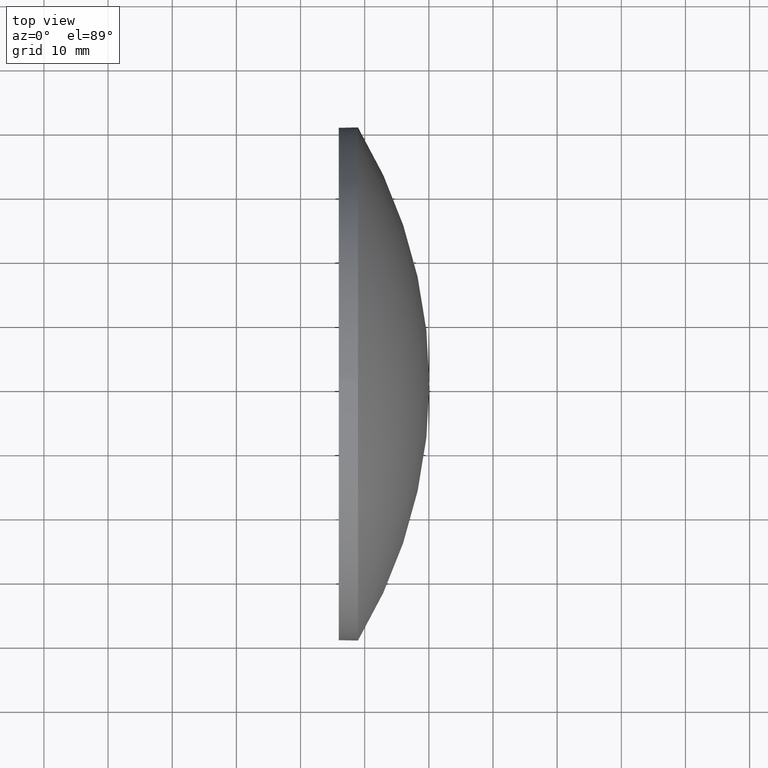
[diagram: clean part render]
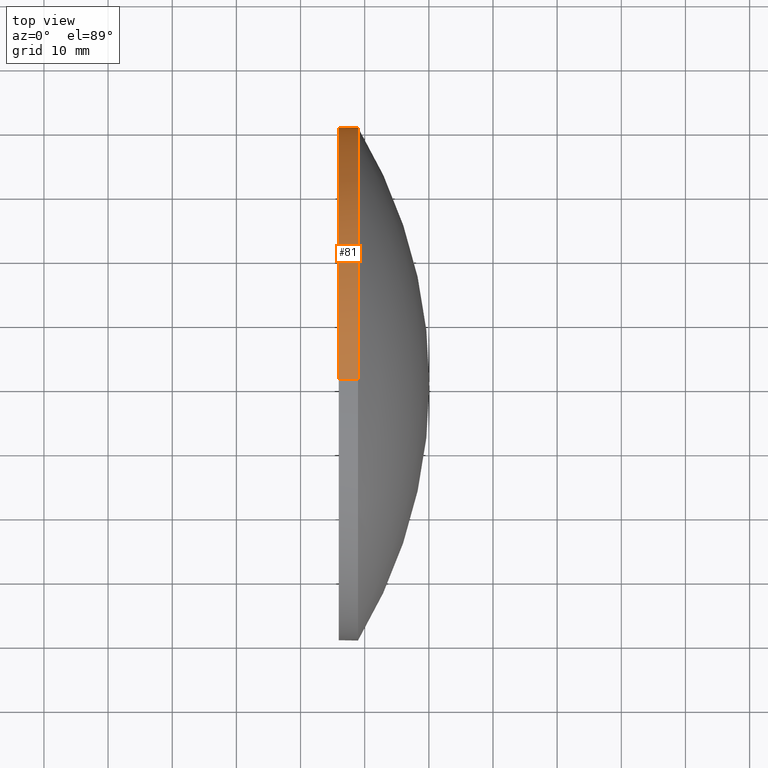
[diagram: same view with one face highlighted and labeled with its STEP entity id]
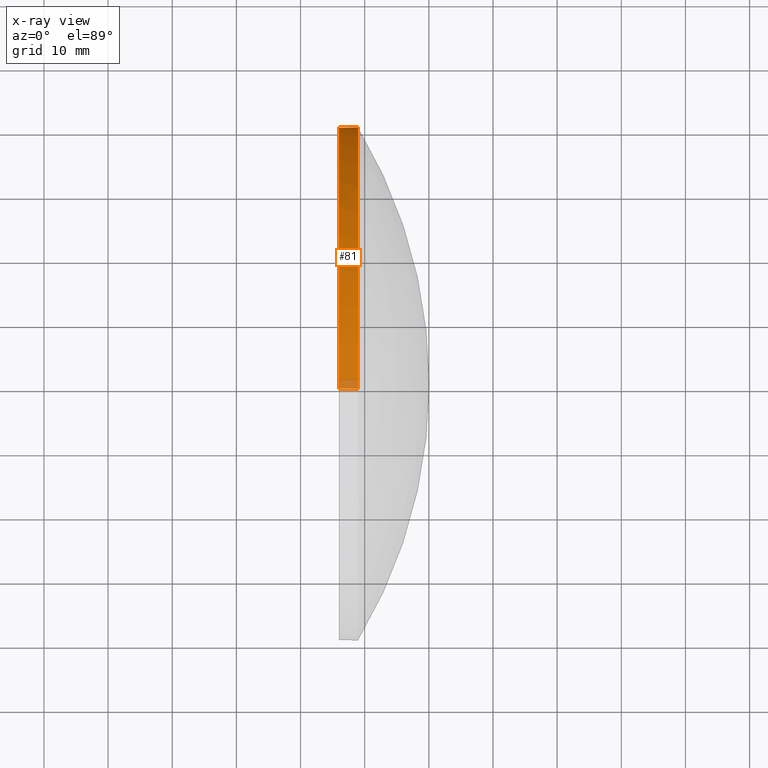
[diagram: x-ray of the same camera — body ghosted, the highlighted face saturated]
A machine part, top view. The second image highlights one B-rep face of the part: STEP entity #81.
The next image is the same camera in x-ray: the body ghosted, the highlighted face saturated — about 3% of this face is hidden behind the body in this view.
In plain terms, the highlighted cylindrical surface (partial cylindrical patch) has radius 40 mm, axis along (-1, -0, -0).
Its self-contained STEP definition (entity closure, byte-faithful):
#1 = ORIENTED_EDGE ( 'NONE', *, *, #128, .F. ) ;
#4 = ORIENTED_EDGE ( 'NONE', *, *, #186, .T. ) ;
#11 = CARTESIAN_POINT ( 'NONE',  ( 217.9945825323866300, 130.4671098528244200, 0.0000000000000000000 ) ) ;
#19 = LINE ( 'NONE', #180, #172 ) ;
#20 = ORIENTED_EDGE ( 'NONE', *, *, #35, .T. ) ;
#24 = DIRECTION ( 'NONE',  ( 0.0000000000000000000, 0.0000000000000000000, 1.000000000000000000 ) ) ;
#25 = CARTESIAN_POINT ( 'NONE',  ( 228.9490942240209100, 130.4671098528244200, -40.00000000000000700 ) ) ;
#29 = CYLINDRICAL_SURFACE ( 'NONE', #68, 40.00000000000000700 ) ;
#31 = CARTESIAN_POINT ( 'NONE',  ( 225.9490942240209100, 130.4671098528244200, 0.0000000000000000000 ) ) ;
#35 = EDGE_CURVE ( 'NONE', #125, #157, #36, .T. ) ;
#36 = CIRCLE ( 'NONE', #148, 40.00000000000000700 ) ;
#40 = CARTESIAN_POINT ( 'NONE',  ( 228.9490942240209100, 130.4671098528244200, 0.0000000000000000000 ) ) ;
#44 = DIRECTION ( 'NONE',  ( 0.0000000000000000000, 0.0000000000000000000, 1.000000000000000000 ) ) ;
#46 = FACE_OUTER_BOUND ( 'NONE', #101, .T. ) ;
#52 = CARTESIAN_POINT ( 'NONE',  ( 225.9490942240209100, 130.4671098528244200, -40.00000000000000700 ) ) ;
#55 = DIRECTION ( 'NONE',  ( -1.000000000000000000, -0.0000000000000000000, -0.0000000000000000000 ) ) ;
#63 = DIRECTION ( 'NONE',  ( -1.000000000000000000, -0.0000000000000000000, -0.0000000000000000000 ) ) ;
#64 = DIRECTION ( 'NONE',  ( -1.000000000000000000, -0.0000000000000000000, -0.0000000000000000000 ) ) ;
#68 = AXIS2_PLACEMENT_3D ( 'NONE', #11, #55, #178 ) ;
#79 = AXIS2_PLACEMENT_3D ( 'NONE', #31, #181, #110 ) ;
#81 = ADVANCED_FACE ( 'NONE', ( #46 ), #29, .T. ) ;
#84 = VERTEX_POINT ( 'NONE', #52 ) ;
#90 = VERTEX_POINT ( 'NONE', #25 ) ;
#92 = DIRECTION ( 'NONE',  ( -1.000000000000000000, -0.0000000000000000000, -0.0000000000000000000 ) ) ;
#96 = ORIENTED_EDGE ( 'NONE', *, *, #142, .F. ) ;
#97 = CARTESIAN_POINT ( 'NONE',  ( 228.9490942240209100, 130.4671098528244200, 40.00000000000000700 ) ) ;
#98 = DIRECTION ( 'NONE',  ( -1.000000000000000000, -0.0000000000000000000, -0.0000000000000000000 ) ) ;
#101 = EDGE_LOOP ( 'NONE', ( #4, #103, #96, #1, #20 ) ) ;
#103 = ORIENTED_EDGE ( 'NONE', *, *, #158, .T. ) ;
#104 = LINE ( 'NONE', #182, #113 ) ;
#105 = VERTEX_POINT ( 'NONE', #106 ) ;
#106 = CARTESIAN_POINT ( 'NONE',  ( 225.9490942240209100, 130.4671098528244200, 40.00000000000000700 ) ) ;
#110 = DIRECTION ( 'NONE',  ( 0.0000000000000000000, 0.0000000000000000000, 1.000000000000000000 ) ) ;
#111 = CARTESIAN_POINT ( 'NONE',  ( 228.9490942240209100, 130.4671098528244200, 0.0000000000000000000 ) ) ;
#113 = VECTOR ( 'NONE', #63, 1000.000000000000000 ) ;
#125 = VERTEX_POINT ( 'NONE', #97 ) ;
#128 = EDGE_CURVE ( 'NONE', #125, #105, #104, .T. ) ;
#134 = CIRCLE ( 'NONE', #151, 40.00000000000000700 ) ;
#142 = EDGE_CURVE ( 'NONE', #105, #84, #185, .T. ) ;
#148 = AXIS2_PLACEMENT_3D ( 'NONE', #40, #92, #24 ) ;
#151 = AXIS2_PLACEMENT_3D ( 'NONE', #111, #98, #44 ) ;
#157 = VERTEX_POINT ( 'NONE', #183 ) ;
#158 = EDGE_CURVE ( 'NONE', #90, #84, #19, .T. ) ;
#172 = VECTOR ( 'NONE', #64, 1000.000000000000000 ) ;
#178 = DIRECTION ( 'NONE',  ( 0.0000000000000000000, 0.0000000000000000000, 1.000000000000000000 ) ) ;
#180 = CARTESIAN_POINT ( 'NONE',  ( 217.9945825323866300, 130.4671098528244200, -40.00000000000000700 ) ) ;
#181 = DIRECTION ( 'NONE',  ( -1.000000000000000000, -0.0000000000000000000, -0.0000000000000000000 ) ) ;
#182 = CARTESIAN_POINT ( 'NONE',  ( 217.9945825323866300, 130.4671098528244200, 40.00000000000000700 ) ) ;
#183 = CARTESIAN_POINT ( 'NONE',  ( 228.9490942240209100, 170.4671098528244200, 0.0000000000000000000 ) ) ;
#185 = CIRCLE ( 'NONE', #79, 40.00000000000000700 ) ;
#186 = EDGE_CURVE ( 'NONE', #157, #90, #134, .T. ) ;